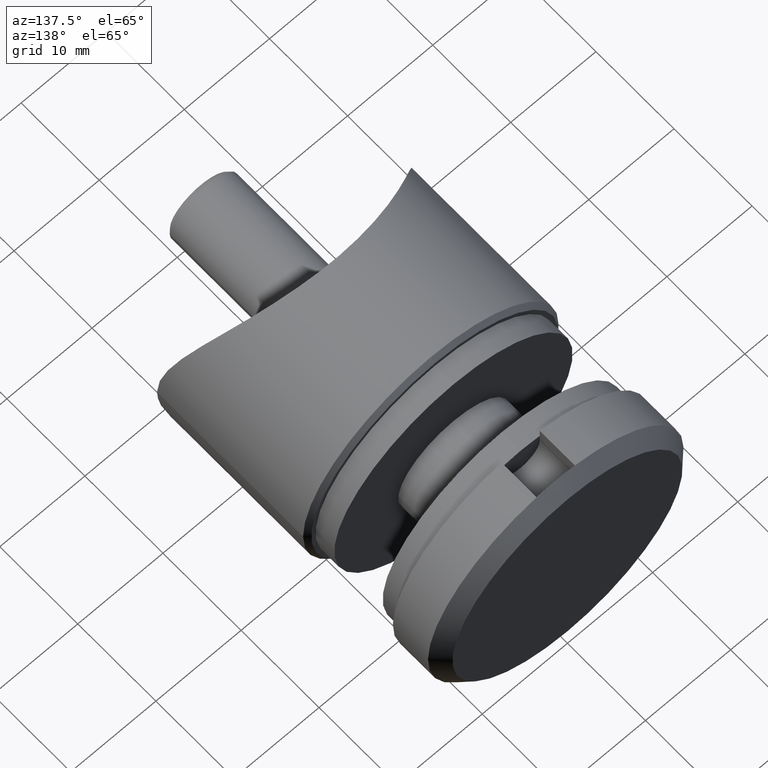
[diagram: clean part render]
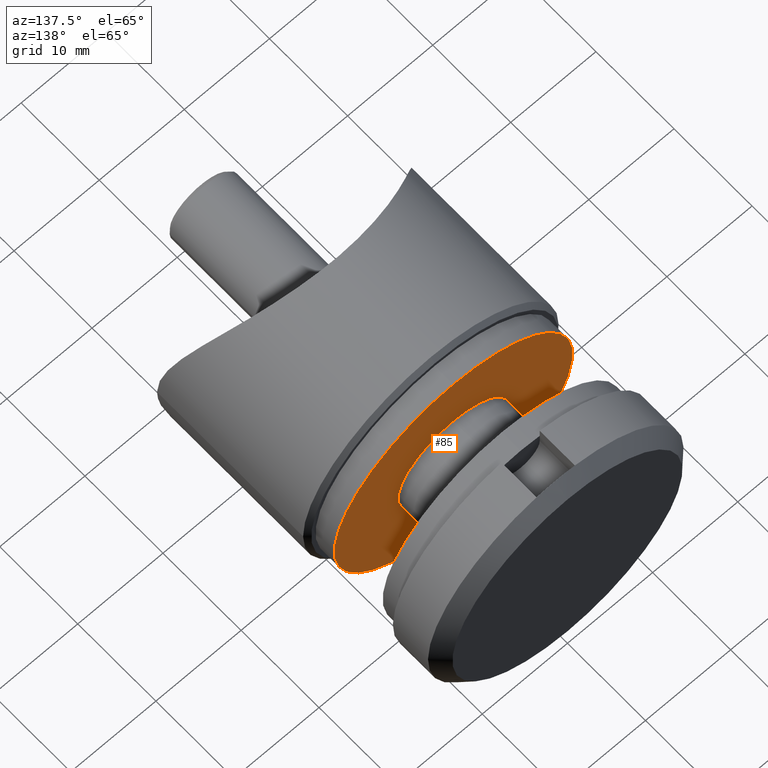
[diagram: same view with one face highlighted and labeled with its STEP entity id]
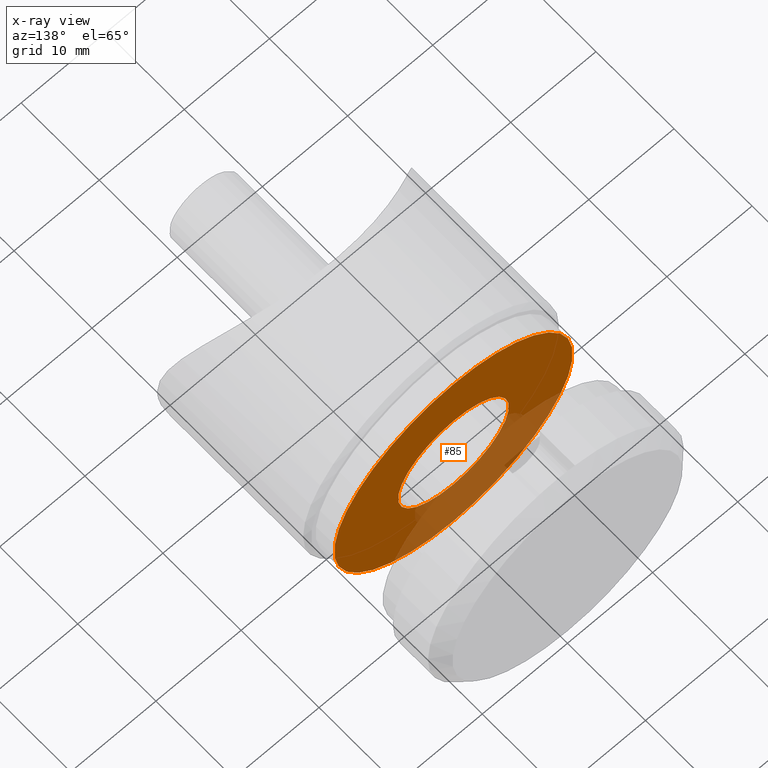
[diagram: x-ray of the same camera — body ghosted, the highlighted face saturated]
A machine part, auxiliary view. The second image highlights one B-rep face of the part: STEP entity #85.
The next image is the same camera in x-ray: the body ghosted, the highlighted face saturated — about 27% of this face is hidden behind the body in this view.
In plain terms, the highlighted planar face has unit normal (0, 1, 0).
Its self-contained STEP definition (entity closure, byte-faithful):
#85 = ADVANCED_FACE ( 'NONE', ( #7222, #6714 ), #7604, .T. ) ;
#298 = DIRECTION ( 'NONE',  ( 0.000000000000000000, 0.000000000000000000, -1.000000000000000000 ) ) ;
#650 = AXIS2_PLACEMENT_3D ( 'NONE', #5637, #13099, #298 ) ;
#1008 = DIRECTION ( 'NONE',  ( 0.000000000000000000, 0.000000000000000000, -1.000000000000000000 ) ) ;
#1049 = DIRECTION ( 'NONE',  ( 0.000000000000000000, 0.000000000000000000, -1.000000000000000000 ) ) ;
#1059 = EDGE_CURVE ( 'NONE', #10779, #9732, #5886, .T. ) ;
#1190 = CIRCLE ( 'NONE', #10765, 14.00000000000000000 ) ;
#1270 = DIRECTION ( 'NONE',  ( -0.000000000000000000, -1.000000000000000000, -0.000000000000000000 ) ) ;
#2011 = CARTESIAN_POINT ( 'NONE',  ( 0.000000000000000000, 2.399999999999999911, 0.000000000000000000 ) ) ;
#2289 = EDGE_CURVE ( 'NONE', #12296, #8927, #9561, .T. ) ;
#2465 = ORIENTED_EDGE ( 'NONE', *, *, #2289, .T. ) ;
#2654 = CARTESIAN_POINT ( 'NONE',  ( 0.000000000000000000, 2.399999999999999911, -14.00000000000000000 ) ) ;
#2834 = EDGE_CURVE ( 'NONE', #8927, #12296, #3722, .T. ) ;
#3162 = EDGE_CURVE ( 'NONE', #9732, #10779, #1190, .T. ) ;
#3227 = CARTESIAN_POINT ( 'NONE',  ( 14.00000000000000000, 2.399999999999999467, 0.000000000000000000 ) ) ;
#3722 = CIRCLE ( 'NONE', #650, 6.500000000000000000 ) ;
#4660 = CARTESIAN_POINT ( 'NONE',  ( 0.000000000000000000, 2.399999999999999911, 0.000000000000000000 ) ) ;
#5637 = CARTESIAN_POINT ( 'NONE',  ( 0.000000000000000000, 2.399999999999999023, 0.000000000000000000 ) ) ;
#5886 = CIRCLE ( 'NONE', #11559, 14.00000000000000000 ) ;
#6172 = AXIS2_PLACEMENT_3D ( 'NONE', #3227, #7820, #9982 ) ;
#6714 = FACE_OUTER_BOUND ( 'NONE', #9263, .T. ) ;
#7222 = FACE_BOUND ( 'NONE', #9139, .T. ) ;
#7596 = ORIENTED_EDGE ( 'NONE', *, *, #2834, .T. ) ;
#7604 = PLANE ( 'NONE',  #6172 ) ;
#7820 = DIRECTION ( 'NONE',  ( 0.000000000000000000, 1.000000000000000000, 0.000000000000000000 ) ) ;
#8320 = ORIENTED_EDGE ( 'NONE', *, *, #1059, .F. ) ;
#8620 = CARTESIAN_POINT ( 'NONE',  ( 1.714505518806294638E-15, 2.399999999999999911, 14.00000000000000000 ) ) ;
#8822 = CARTESIAN_POINT ( 'NONE',  ( 0.000000000000000000, 2.399999999999999023, -6.500000000000000000 ) ) ;
#8927 = VERTEX_POINT ( 'NONE', #13768 ) ;
#9137 = AXIS2_PLACEMENT_3D ( 'NONE', #12750, #12844, #1049 ) ;
#9139 = EDGE_LOOP ( 'NONE', ( #2465, #7596 ) ) ;
#9263 = EDGE_LOOP ( 'NONE', ( #8320, #10982 ) ) ;
#9561 = CIRCLE ( 'NONE', #9137, 6.500000000000000000 ) ;
#9732 = VERTEX_POINT ( 'NONE', #8620 ) ;
#9948 = DIRECTION ( 'NONE',  ( 0.000000000000000000, 0.000000000000000000, -1.000000000000000000 ) ) ;
#9982 = DIRECTION ( 'NONE',  ( 0.000000000000000000, -0.000000000000000000, 1.000000000000000000 ) ) ;
#10765 = AXIS2_PLACEMENT_3D ( 'NONE', #2011, #13670, #1008 ) ;
#10779 = VERTEX_POINT ( 'NONE', #2654 ) ;
#10982 = ORIENTED_EDGE ( 'NONE', *, *, #3162, .F. ) ;
#11559 = AXIS2_PLACEMENT_3D ( 'NONE', #4660, #1270, #9948 ) ;
#12296 = VERTEX_POINT ( 'NONE', #8822 ) ;
#12750 = CARTESIAN_POINT ( 'NONE',  ( 0.000000000000000000, 2.399999999999999023, 0.000000000000000000 ) ) ;
#12844 = DIRECTION ( 'NONE',  ( -0.000000000000000000, -1.000000000000000000, -0.000000000000000000 ) ) ;
#13099 = DIRECTION ( 'NONE',  ( -0.000000000000000000, -1.000000000000000000, -0.000000000000000000 ) ) ;
#13670 = DIRECTION ( 'NONE',  ( -0.000000000000000000, -1.000000000000000000, -0.000000000000000000 ) ) ;
#13768 = CARTESIAN_POINT ( 'NONE',  ( 7.960204194457796463E-16, 2.399999999999999023, 6.500000000000000888 ) ) ;